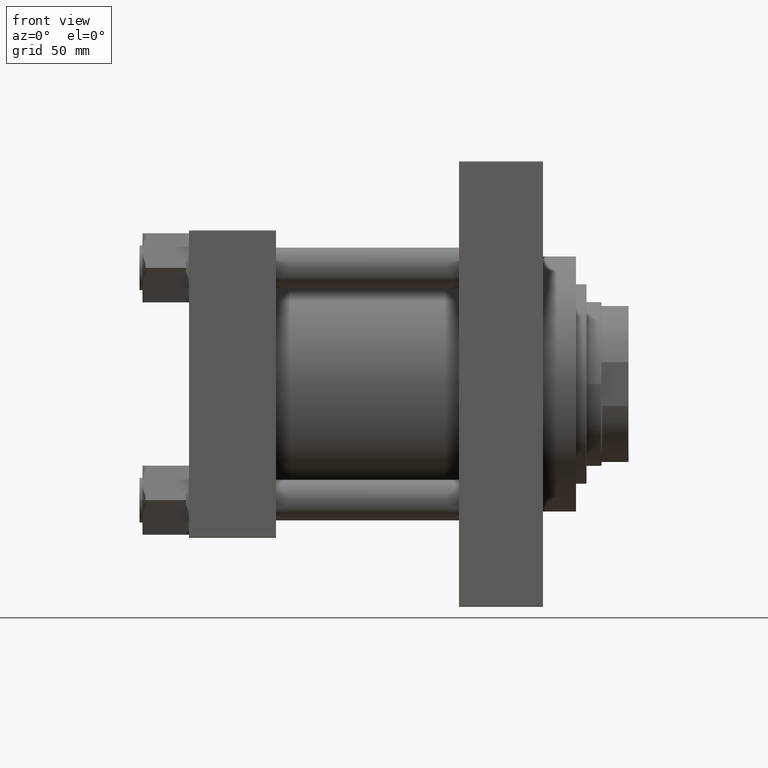
[diagram: clean part render]
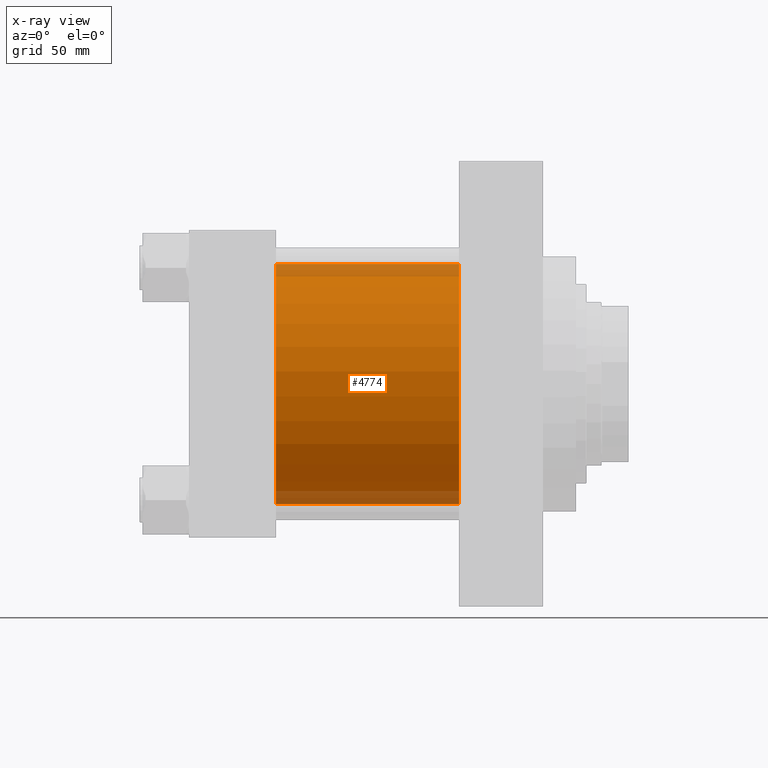
[diagram: x-ray — body ghosted, one internal face saturated and labeled with its STEP entity id]
A machine part, front view, then the same camera in x-ray: the body is ghosted and one INTERNAL B-rep face — a face not visible from any outside direction — is saturated and labeled: STEP entity #4774.
In plain terms, the highlighted cylindrical surface (partial cylindrical patch) has radius 80 mm, axis along (-1, -0, -0).
Its self-contained STEP definition (entity closure, byte-faithful):
#183 = CARTESIAN_POINT ( 'NONE',  ( 180.0000000000000000, 7.195089179213613832E-15, -80.00000000000000000 ) ) ;
#2647 = LINE ( 'NONE', #24392, #21073 ) ;
#4274 = VERTEX_POINT ( 'NONE', #27367 ) ;
#4774 = ADVANCED_FACE ( 'NONE', ( #36698 ), #21471, .F. ) ;
#7728 = CIRCLE ( 'NONE', #35490, 80.00000000000000000 ) ;
#7978 = ORIENTED_EDGE ( 'NONE', *, *, #12517, .F. ) ;
#8448 = VERTEX_POINT ( 'NONE', #42602 ) ;
#9752 = EDGE_CURVE ( 'NONE', #4274, #8448, #33523, .T. ) ;
#11660 = DIRECTION ( 'NONE',  ( 0.000000000000000000, 0.000000000000000000, -1.000000000000000000 ) ) ;
#12139 = DIRECTION ( 'NONE',  ( 1.000000000000000000, 0.000000000000000000, 0.000000000000000000 ) ) ;
#12354 = ORIENTED_EDGE ( 'NONE', *, *, #12901, .F. ) ;
#12517 = EDGE_CURVE ( 'NONE', #18405, #8448, #24938, .T. ) ;
#12547 = DIRECTION ( 'NONE',  ( -1.000000000000000000, -0.000000000000000000, -0.000000000000000000 ) ) ;
#12901 = EDGE_CURVE ( 'NONE', #35358, #18405, #2647, .T. ) ;
#13611 = EDGE_LOOP ( 'NONE', ( #21673, #35844, #7978, #12354 ) ) ;
#18081 = DIRECTION ( 'NONE',  ( -1.000000000000000000, -0.000000000000000000, -0.000000000000000000 ) ) ;
#18405 = VERTEX_POINT ( 'NONE', #34324 ) ;
#20975 = VECTOR ( 'NONE', #29672, 1000.000000000000000 ) ;
#21073 = VECTOR ( 'NONE', #12547, 1000.000000000000000 ) ;
#21240 = DIRECTION ( 'NONE',  ( 0.000000000000000000, 0.000000000000000000, 1.000000000000000000 ) ) ;
#21471 = CYLINDRICAL_SURFACE ( 'NONE', #46397, 80.00000000000000000 ) ;
#21673 = ORIENTED_EDGE ( 'NONE', *, *, #47735, .T. ) ;
#24392 = CARTESIAN_POINT ( 'NONE',  ( 180.0000000000000000, -2.602085213965210642E-15, 80.00000000000000000 ) ) ;
#24938 = CIRCLE ( 'NONE', #36496, 80.00000000000000000 ) ;
#26701 = DIRECTION ( 'NONE',  ( 0.000000000000000000, 0.000000000000000000, -1.000000000000000000 ) ) ;
#27367 = CARTESIAN_POINT ( 'NONE',  ( 180.0000000000000000, 7.195089179213613832E-15, -80.00000000000000000 ) ) ;
#29459 = CARTESIAN_POINT ( 'NONE',  ( 180.0000000000000000, -2.602085213965210642E-15, 0.000000000000000000 ) ) ;
#29672 = DIRECTION ( 'NONE',  ( -1.000000000000000000, -0.000000000000000000, -0.000000000000000000 ) ) ;
#33523 = LINE ( 'NONE', #183, #20975 ) ;
#34324 = CARTESIAN_POINT ( 'NONE',  ( 58.00000000000000000, -2.602085213965210642E-15, 80.00000000000000000 ) ) ;
#35358 = VERTEX_POINT ( 'NONE', #41150 ) ;
#35490 = AXIS2_PLACEMENT_3D ( 'NONE', #47257, #45290, #26701 ) ;
#35844 = ORIENTED_EDGE ( 'NONE', *, *, #9752, .T. ) ;
#36496 = AXIS2_PLACEMENT_3D ( 'NONE', #41384, #12139, #11660 ) ;
#36698 = FACE_OUTER_BOUND ( 'NONE', #13611, .T. ) ;
#41150 = CARTESIAN_POINT ( 'NONE',  ( 180.0000000000000000, -2.602085213965210642E-15, 80.00000000000000000 ) ) ;
#41384 = CARTESIAN_POINT ( 'NONE',  ( 58.00000000000000000, -2.602085213965210642E-15, 0.000000000000000000 ) ) ;
#42602 = CARTESIAN_POINT ( 'NONE',  ( 58.00000000000000000, 7.195089179213613832E-15, -80.00000000000000000 ) ) ;
#45290 = DIRECTION ( 'NONE',  ( 1.000000000000000000, 0.000000000000000000, 0.000000000000000000 ) ) ;
#46397 = AXIS2_PLACEMENT_3D ( 'NONE', #29459, #18081, #21240 ) ;
#47257 = CARTESIAN_POINT ( 'NONE',  ( 180.0000000000000000, -2.602085213965210642E-15, 0.000000000000000000 ) ) ;
#47735 = EDGE_CURVE ( 'NONE', #35358, #4274, #7728, .T. ) ;